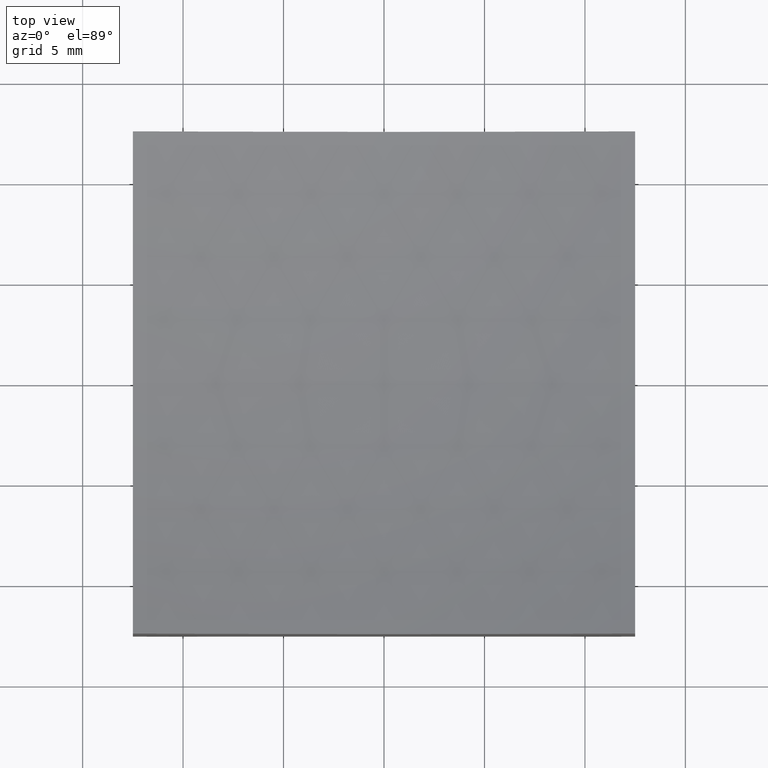
[diagram: clean part render]
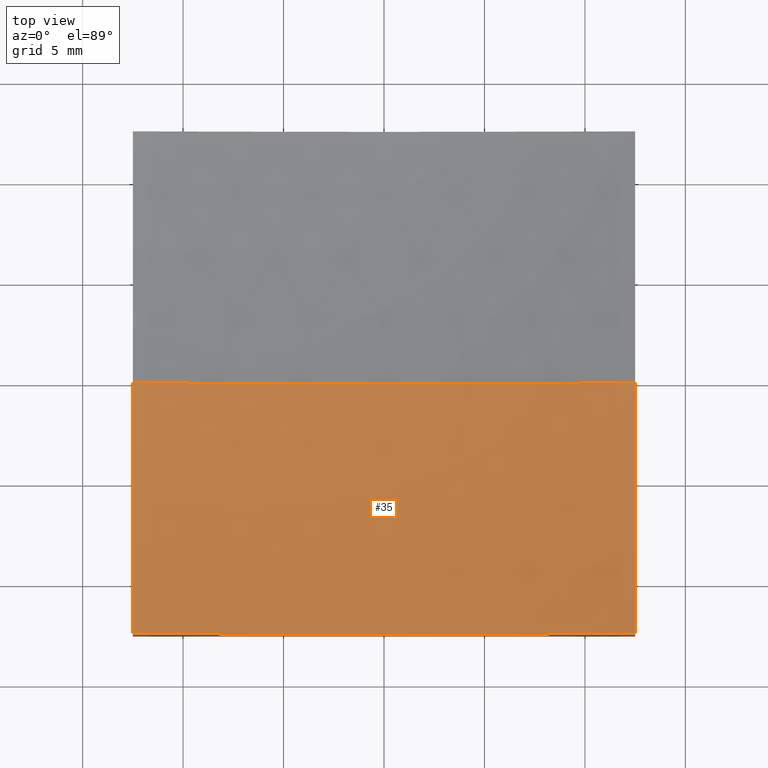
[diagram: same view with one face highlighted and labeled with its STEP entity id]
A machine part, top view. The second image highlights one B-rep face of the part: STEP entity #35.
In plain terms, the highlighted spherical surface has radius 60 mm.
Its self-contained STEP definition (entity closure, byte-faithful):
#9 = SPHERICAL_SURFACE ( 'NONE', #64, 60.00000000000000000 ) ;
#10 = AXIS2_PLACEMENT_3D ( 'NONE', #235, #80, #108 ) ;
#14 = CIRCLE ( 'NONE', #10, 58.68347297152751452 ) ;
#28 = ORIENTED_EDGE ( 'NONE', *, *, #200, .T. ) ;
#29 = FACE_OUTER_BOUND ( 'NONE', #89, .T. ) ;
#35 = ADVANCED_FACE ( 'NONE', ( #29 ), #9, .F. ) ;
#57 = CARTESIAN_POINT ( 'NONE',  ( 8.278698348036925657E-15, 0.0000000000000000000, 6.000000000000005329 ) ) ;
#59 = DIRECTION ( 'NONE',  ( 1.000000000000000000, 1.387778780781445676E-16, -0.0000000000000000000 ) ) ;
#60 = CIRCLE ( 'NONE', #202, 58.68347297152751452 ) ;
#63 = AXIS2_PLACEMENT_3D ( 'NONE', #192, #211, #78 ) ;
#64 = AXIS2_PLACEMENT_3D ( 'NONE', #94, #110, #126 ) ;
#68 = ORIENTED_EDGE ( 'NONE', *, *, #84, .F. ) ;
#78 = DIRECTION ( 'NONE',  ( -1.478034093873817962E-16, 1.000000000000000000, 0.0000000000000000000 ) ) ;
#80 = DIRECTION ( 'NONE',  ( 0.0000000000000000000, 1.000000000000000000, 0.0000000000000000000 ) ) ;
#83 = CARTESIAN_POINT ( 'NONE',  ( 12.50000000000000355, -12.50000000000000000, 8.663275294101428159 ) ) ;
#84 = EDGE_CURVE ( 'NONE', #201, #187, #60, .T. ) ;
#89 = EDGE_LOOP ( 'NONE', ( #151, #28, #68, #205, #199 ) ) ;
#92 = EDGE_CURVE ( 'NONE', #229, #240, #206, .T. ) ;
#94 = CARTESIAN_POINT ( 'NONE',  ( 8.082668874372532400E-15, 0.0000000000000000000, 66.00000000000000000 ) ) ;
#101 = CARTESIAN_POINT ( 'NONE',  ( -12.49999999999999822, -1.734723475976808278E-15, 66.00000000000000000 ) ) ;
#105 = CARTESIAN_POINT ( 'NONE',  ( 12.50000000000000178, 0.0000000000000000000, 7.316527028472495253 ) ) ;
#106 = CIRCLE ( 'NONE', #121, 60.00000000000000000 ) ;
#108 = DIRECTION ( 'NONE',  ( 0.0000000000000000000, 0.0000000000000000000, 1.000000000000000000 ) ) ;
#110 = DIRECTION ( 'NONE',  ( -0.0000000000000000000, 1.000000000000000000, 0.0000000000000000000 ) ) ;
#120 = CARTESIAN_POINT ( 'NONE',  ( -12.49999999999999645, 1.530808498934191916E-15, 7.316527028472495253 ) ) ;
#121 = AXIS2_PLACEMENT_3D ( 'NONE', #133, #248, #156 ) ;
#122 = DIRECTION ( 'NONE',  ( 1.224646799147353207E-16, 1.000000000000000000, -7.098687467539885897E-33 ) ) ;
#124 = VERTEX_POINT ( 'NONE', #57 ) ;
#126 = DIRECTION ( 'NONE',  ( 1.000000000000000000, 0.0000000000000000000, 0.0000000000000000000 ) ) ;
#133 = CARTESIAN_POINT ( 'NONE',  ( 8.082668874372532400E-15, 0.0000000000000000000, 66.00000000000000000 ) ) ;
#151 = ORIENTED_EDGE ( 'NONE', *, *, #181, .F. ) ;
#156 = DIRECTION ( 'NONE',  ( 0.0000000000000000000, 0.0000000000000000000, -1.000000000000000000 ) ) ;
#173 = DIRECTION ( 'NONE',  ( -1.478034093873817962E-16, 1.000000000000000000, 0.0000000000000000000 ) ) ;
#181 = EDGE_CURVE ( 'NONE', #124, #240, #106, .T. ) ;
#182 = CIRCLE ( 'NONE', #228, 60.00000000000000000 ) ;
#187 = VERTEX_POINT ( 'NONE', #120 ) ;
#192 = CARTESIAN_POINT ( 'NONE',  ( 12.50000000000000178, 1.734723475976806306E-15, 66.00000000000000000 ) ) ;
#199 = ORIENTED_EDGE ( 'NONE', *, *, #92, .T. ) ;
#200 = EDGE_CURVE ( 'NONE', #124, #187, #182, .T. ) ;
#201 = VERTEX_POINT ( 'NONE', #232 ) ;
#202 = AXIS2_PLACEMENT_3D ( 'NONE', #101, #59, #173 ) ;
#205 = ORIENTED_EDGE ( 'NONE', *, *, #252, .F. ) ;
#206 = CIRCLE ( 'NONE', #63, 58.68347297152751452 ) ;
#211 = DIRECTION ( 'NONE',  ( 1.000000000000000000, 1.387778780781445676E-16, -0.0000000000000000000 ) ) ;
#215 = CARTESIAN_POINT ( 'NONE',  ( 8.082668874372532400E-15, 0.0000000000000000000, 66.00000000000000000 ) ) ;
#228 = AXIS2_PLACEMENT_3D ( 'NONE', #215, #122, #231 ) ;
#229 = VERTEX_POINT ( 'NONE', #83 ) ;
#231 = DIRECTION ( 'NONE',  ( -1.000000000000000000, 1.224646799147352961E-16, 0.0000000000000000000 ) ) ;
#232 = CARTESIAN_POINT ( 'NONE',  ( -12.49999999999999645, -12.50000000000000000, 8.663275294101428159 ) ) ;
#235 = CARTESIAN_POINT ( 'NONE',  ( 8.082668874372532400E-15, -12.50000000000000000, 66.00000000000000000 ) ) ;
#240 = VERTEX_POINT ( 'NONE', #105 ) ;
#248 = DIRECTION ( 'NONE',  ( 0.0000000000000000000, -1.000000000000000000, -0.0000000000000000000 ) ) ;
#252 = EDGE_CURVE ( 'NONE', #229, #201, #14, .T. ) ;